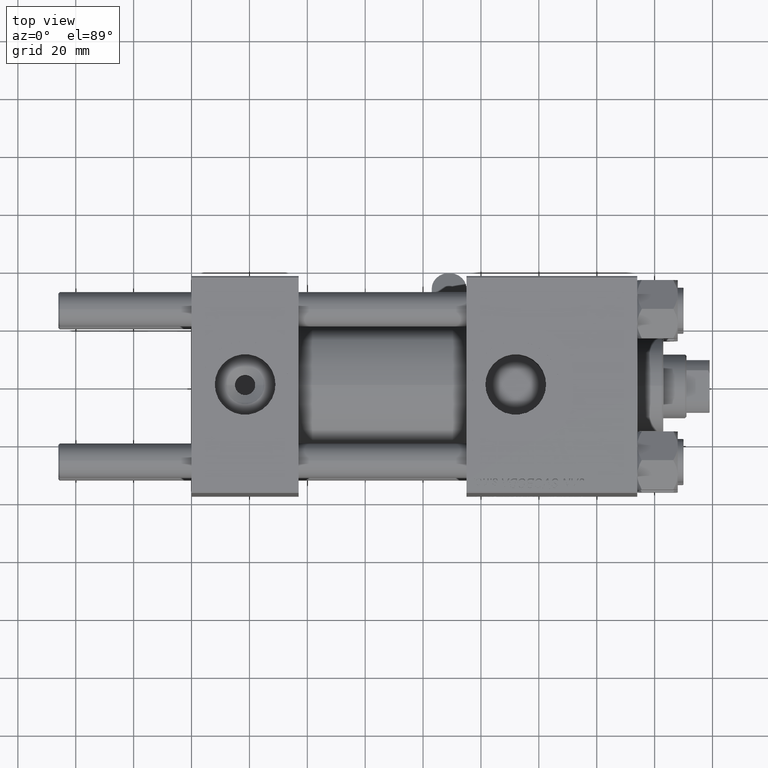
[diagram: clean part render]
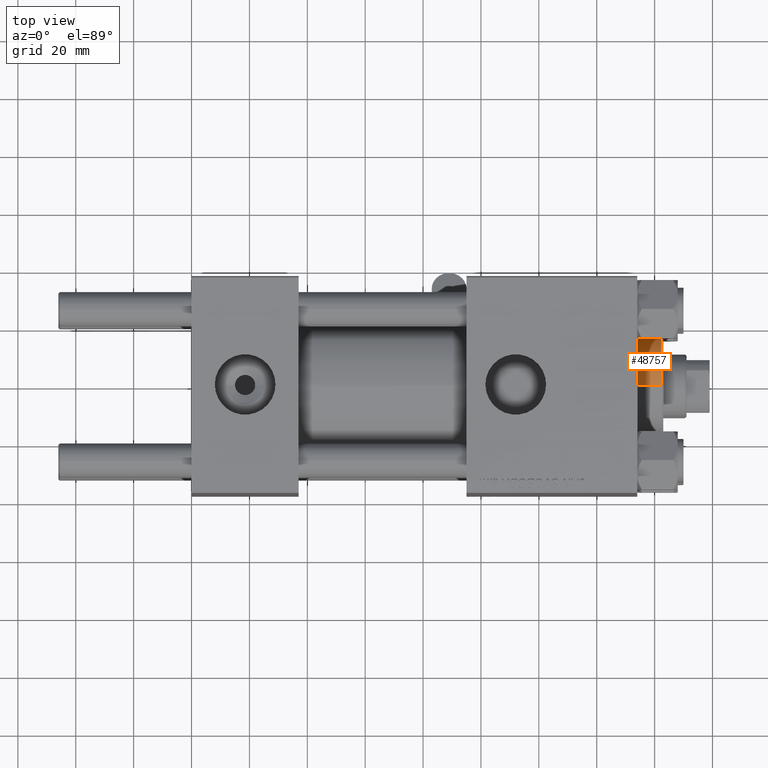
[diagram: same view with one face highlighted and labeled with its STEP entity id]
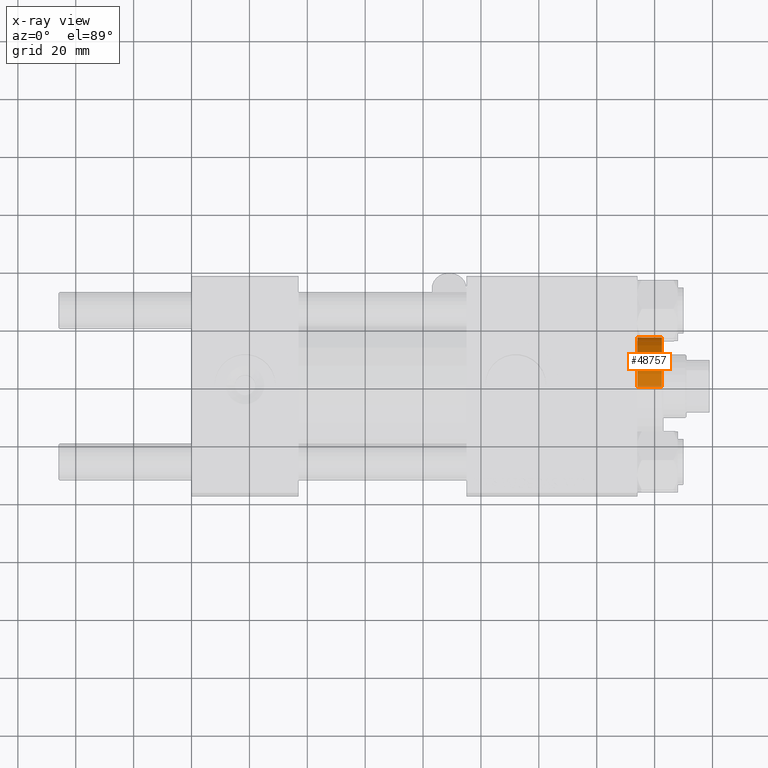
[diagram: x-ray of the same camera — body ghosted, the highlighted face saturated]
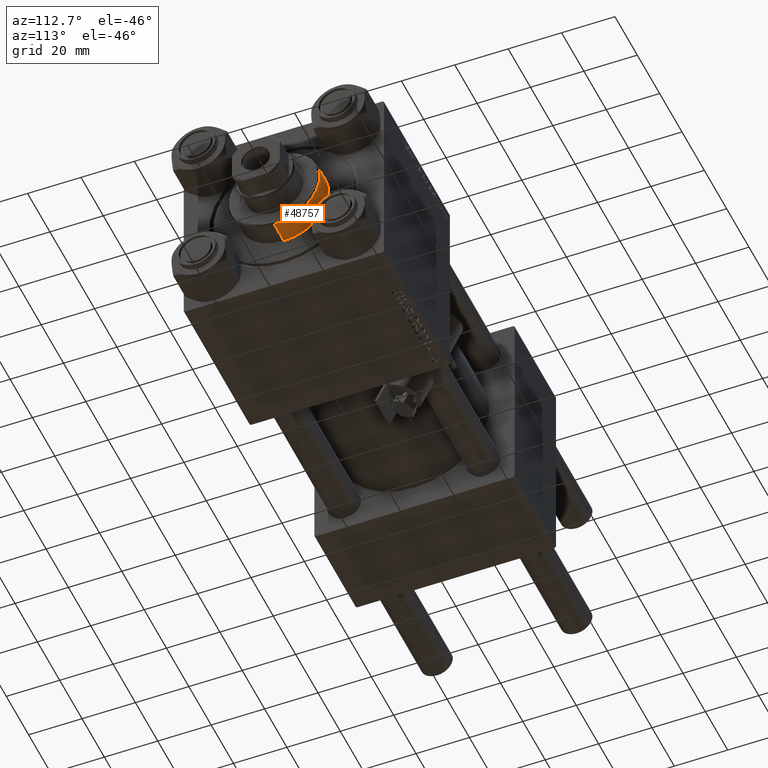
[diagram: same view with one face highlighted and labeled with its STEP entity id]
A machine part, top view. The second image highlights one B-rep face of the part: STEP entity #48757.
The next image is the same camera in x-ray: the body ghosted, the highlighted face saturated — about 4% of this face is hidden behind the body in this view.
A second angle (auxiliary view) of the same face is appended — the face is thin or edge-on in the first view.
In plain terms, the highlighted cylindrical surface (partial cylindrical patch) has radius 17 mm, axis along (-1, -0, 0).
Its self-contained STEP definition (entity closure, byte-faithful):
#217 = EDGE_LOOP ( 'NONE', ( #32999, #38770, #1930, #28095 ) ) ;
#472 = CARTESIAN_POINT ( 'NONE',  ( 0.000000000000000000, 0.000000000000000000, 28.69999999999999929 ) ) ;
#658 = EDGE_CURVE ( 'NONE', #39029, #13194, #23315, .T. ) ;
#1268 = VECTOR ( 'NONE', #41057, 1000.000000000000000 ) ;
#1930 = ORIENTED_EDGE ( 'NONE', *, *, #658, .T. ) ;
#4953 = VECTOR ( 'NONE', #48996, 1000.000000000000000 ) ;
#5342 = DIRECTION ( 'NONE',  ( 0.000000000000000000, 0.000000000000000000, 1.000000000000000000 ) ) ;
#5817 = DIRECTION ( 'NONE',  ( -0.000000000000000000, -0.000000000000000000, -1.000000000000000000 ) ) ;
#8223 = AXIS2_PLACEMENT_3D ( 'NONE', #48675, #5817, #37117 ) ;
#9234 = CIRCLE ( 'NONE', #41163, 17.00000000000000000 ) ;
#11046 = CARTESIAN_POINT ( 'NONE',  ( -17.00000000000000000, 0.000000000000000000, 28.69999999999999929 ) ) ;
#13194 = VERTEX_POINT ( 'NONE', #11046 ) ;
#13580 = CARTESIAN_POINT ( 'NONE',  ( -17.00000000000000000, 0.000000000000000000, 37.69999999999999574 ) ) ;
#14242 = VERTEX_POINT ( 'NONE', #36770 ) ;
#14920 = CARTESIAN_POINT ( 'NONE',  ( 17.00000000000000000, 2.081899558550500280E-15, 28.69999999999999929 ) ) ;
#17353 = FACE_OUTER_BOUND ( 'NONE', #217, .T. ) ;
#20169 = DIRECTION ( 'NONE',  ( 1.000000000000000000, 0.000000000000000000, 0.000000000000000000 ) ) ;
#22556 = EDGE_CURVE ( 'NONE', #47594, #14242, #9234, .T. ) ;
#23315 = CIRCLE ( 'NONE', #47962, 17.00000000000000000 ) ;
#28095 = ORIENTED_EDGE ( 'NONE', *, *, #49374, .F. ) ;
#28457 = CARTESIAN_POINT ( 'NONE',  ( -17.00000000000000000, 0.000000000000000000, 37.19999999999999574 ) ) ;
#30473 = DIRECTION ( 'NONE',  ( 0.000000000000000000, 0.000000000000000000, -1.000000000000000000 ) ) ;
#30504 = EDGE_CURVE ( 'NONE', #14242, #39029, #33357, .T. ) ;
#32999 = ORIENTED_EDGE ( 'NONE', *, *, #22556, .T. ) ;
#33357 = LINE ( 'NONE', #37201, #1268 ) ;
#36364 = CYLINDRICAL_SURFACE ( 'NONE', #8223, 17.00000000000000000 ) ;
#36770 = CARTESIAN_POINT ( 'NONE',  ( 17.00000000000000000, 2.081899558550500280E-15, 37.19999999999999574 ) ) ;
#37117 = DIRECTION ( 'NONE',  ( -1.000000000000000000, 0.000000000000000000, 0.000000000000000000 ) ) ;
#37201 = CARTESIAN_POINT ( 'NONE',  ( 17.00000000000000000, 2.081899558550500280E-15, 37.69999999999999574 ) ) ;
#38770 = ORIENTED_EDGE ( 'NONE', *, *, #30504, .T. ) ;
#39029 = VERTEX_POINT ( 'NONE', #14920 ) ;
#41057 = DIRECTION ( 'NONE',  ( -0.000000000000000000, -0.000000000000000000, -1.000000000000000000 ) ) ;
#41163 = AXIS2_PLACEMENT_3D ( 'NONE', #49980, #30473, #20169 ) ;
#47594 = VERTEX_POINT ( 'NONE', #28457 ) ;
#47706 = DIRECTION ( 'NONE',  ( 1.000000000000000000, 0.000000000000000000, 0.000000000000000000 ) ) ;
#47962 = AXIS2_PLACEMENT_3D ( 'NONE', #472, #5342, #47706 ) ;
#48675 = CARTESIAN_POINT ( 'NONE',  ( 0.000000000000000000, 0.000000000000000000, 37.69999999999999574 ) ) ;
#48744 = LINE ( 'NONE', #13580, #4953 ) ;
#48757 = ADVANCED_FACE ( 'NONE', ( #17353 ), #36364, .T. ) ;
#48996 = DIRECTION ( 'NONE',  ( -0.000000000000000000, -0.000000000000000000, -1.000000000000000000 ) ) ;
#49374 = EDGE_CURVE ( 'NONE', #47594, #13194, #48744, .T. ) ;
#49980 = CARTESIAN_POINT ( 'NONE',  ( 0.000000000000000000, 0.000000000000000000, 37.19999999999999574 ) ) ;